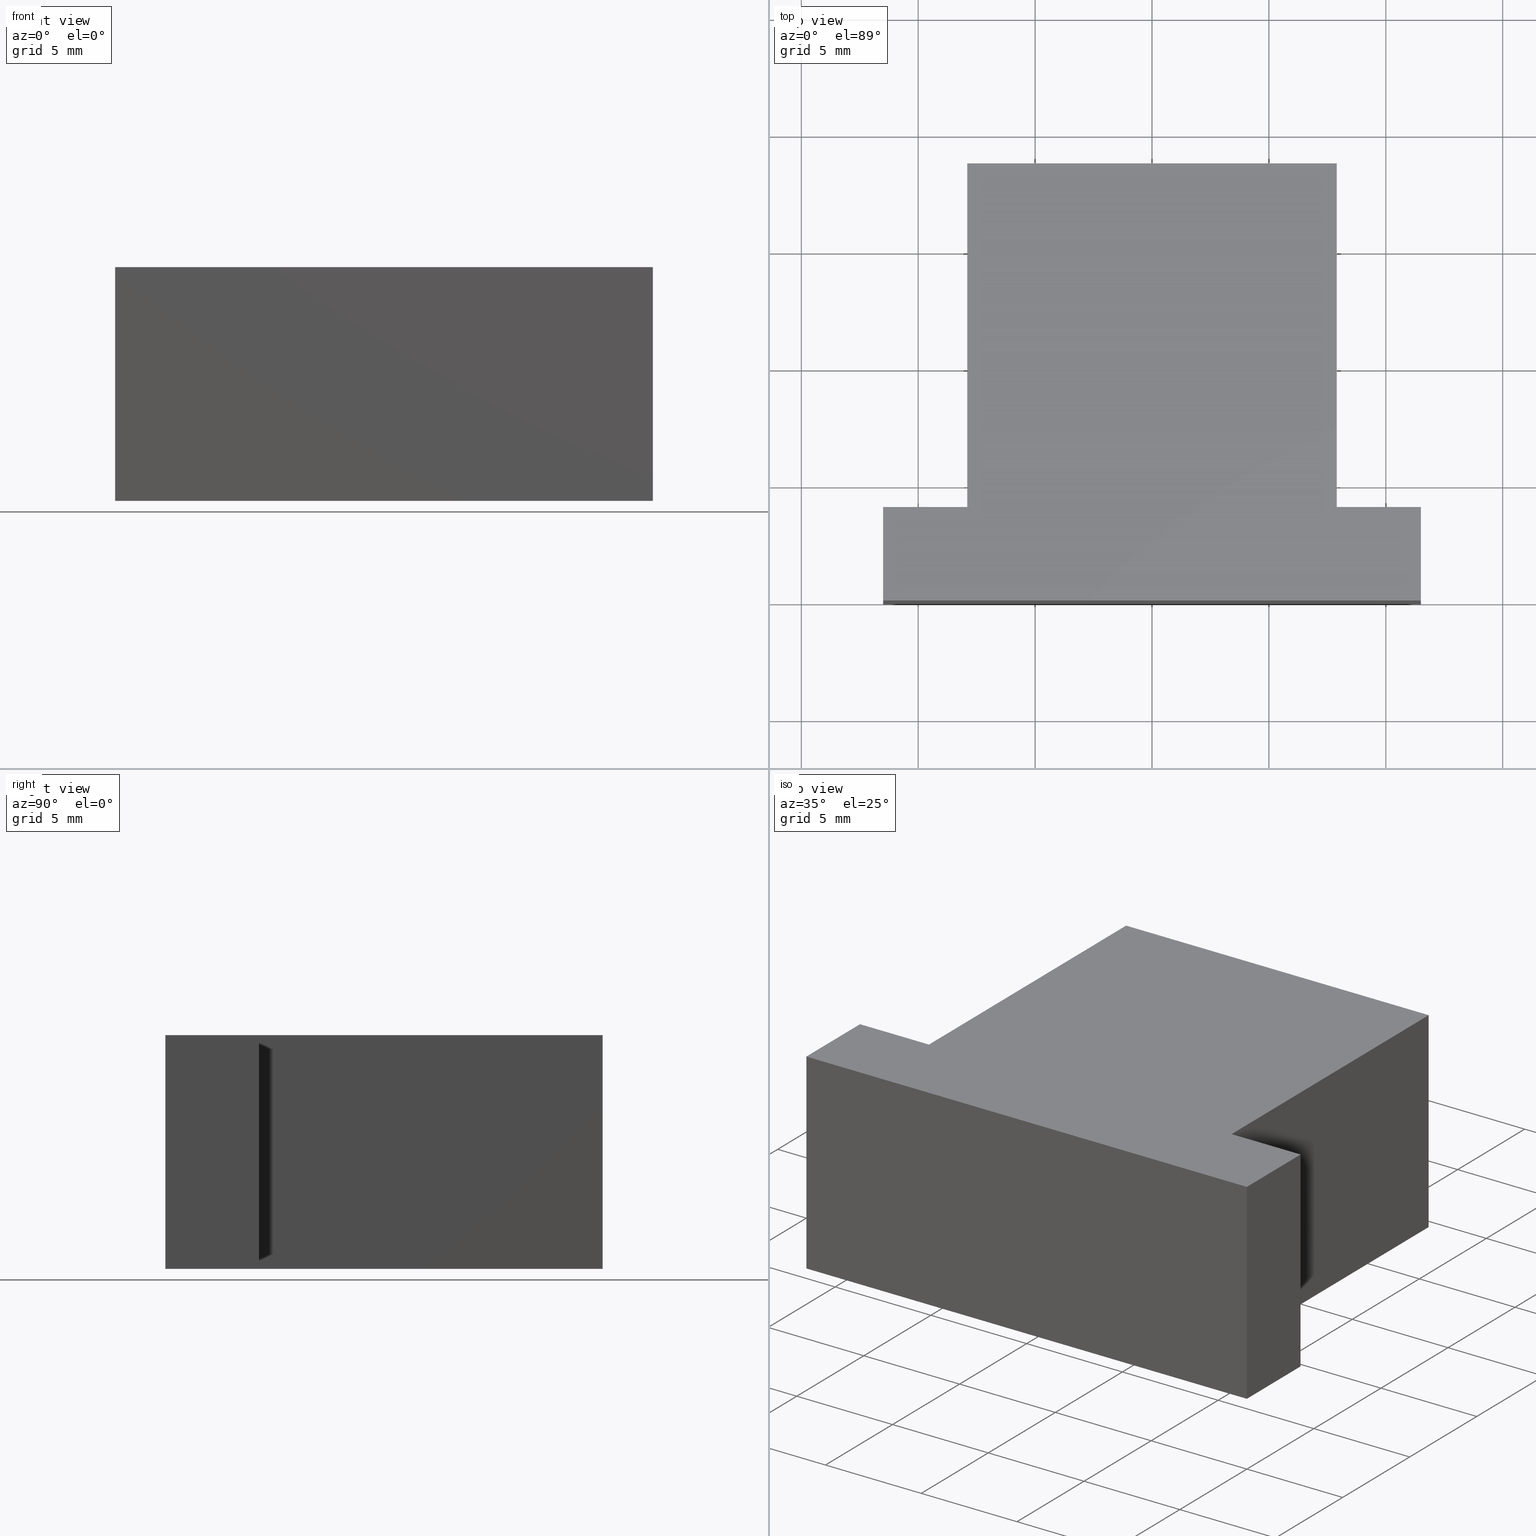
[diagram: canonical four-view strip — front | top / right | iso, engineering-drawing reading convention]
A machine part, canonical four-view strip (front | top / right | iso — engineering-drawing reading convention). The complete STEP part file that produces these views, byte-faithful:
ISO-10303-21;
HEADER;
/* Generated by software containing ST-Developer
 * from STEP Tools, Inc. (www.steptools.com) 
 */

FILE_DESCRIPTION(
/* description */ (''),
/* implementation_level */ '2;1');

FILE_NAME(
/* name */ 'E_3_01_04_15_00_WKZ-0129.stp',
/* time_stamp */ '2025-11-24T11:48:16+01:00',
/* author */ ('d.fischer'),
/* organization */ (''),
/* preprocessor_version */ 'ST-DEVELOPER v20',
/* originating_system */ 'Autodesk Inventor 2025',
/* authorisation */ '');

FILE_SCHEMA (('AUTOMOTIVE_DESIGN { 1 0 10303 214 3 1 1 }'));
ENDSEC;

DATA;
#10=MECHANICAL_DESIGN_GEOMETRIC_PRESENTATION_REPRESENTATION('',(#13),#324);
#11=SHAPE_REPRESENTATION_RELATIONSHIP('SRR','None',#331,#12);
#12=ADVANCED_BREP_SHAPE_REPRESENTATION('',(#14),#323);
#13=STYLED_ITEM('',(#340),#14);
#14=MANIFOLD_SOLID_BREP('Volumenk\X\F6rper1',#191);
#15=FACE_OUTER_BOUND('',#25,.T.);
#16=FACE_OUTER_BOUND('',#26,.T.);
#17=FACE_OUTER_BOUND('',#27,.T.);
#18=FACE_OUTER_BOUND('',#28,.T.);
#19=FACE_OUTER_BOUND('',#29,.T.);
#20=FACE_OUTER_BOUND('',#30,.T.);
#21=FACE_OUTER_BOUND('',#31,.T.);
#22=FACE_OUTER_BOUND('',#32,.T.);
#23=FACE_OUTER_BOUND('',#33,.T.);
#24=FACE_OUTER_BOUND('',#34,.T.);
#25=EDGE_LOOP('',(#123,#124,#125,#126,#127,#128,#129,#130));
#26=EDGE_LOOP('',(#131,#132,#133,#134));
#27=EDGE_LOOP('',(#135,#136,#137,#138));
#28=EDGE_LOOP('',(#139,#140,#141,#142));
#29=EDGE_LOOP('',(#143,#144,#145,#146));
#30=EDGE_LOOP('',(#147,#148,#149,#150));
#31=EDGE_LOOP('',(#151,#152,#153,#154));
#32=EDGE_LOOP('',(#155,#156,#157,#158));
#33=EDGE_LOOP('',(#159,#160,#161,#162));
#34=EDGE_LOOP('',(#163,#164,#165,#166,#167,#168,#169,#170));
#35=LINE('',#274,#59);
#36=LINE('',#276,#60);
#37=LINE('',#278,#61);
#38=LINE('',#280,#62);
#39=LINE('',#282,#63);
#40=LINE('',#284,#64);
#41=LINE('',#286,#65);
#42=LINE('',#287,#66);
#43=LINE('',#291,#67);
#44=LINE('',#292,#68);
#45=LINE('',#293,#69);
#46=LINE('',#296,#70);
#47=LINE('',#297,#71);
#48=LINE('',#300,#72);
#49=LINE('',#301,#73);
#50=LINE('',#304,#74);
#51=LINE('',#305,#75);
#52=LINE('',#308,#76);
#53=LINE('',#309,#77);
#54=LINE('',#312,#78);
#55=LINE('',#313,#79);
#56=LINE('',#316,#80);
#57=LINE('',#317,#81);
#58=LINE('',#319,#82);
#59=VECTOR('',#228,10.);
#60=VECTOR('',#229,10.);
#61=VECTOR('',#230,10.);
#62=VECTOR('',#231,10.);
#63=VECTOR('',#232,10.);
#64=VECTOR('',#233,10.);
#65=VECTOR('',#234,10.);
#66=VECTOR('',#235,10.);
#67=VECTOR('',#238,10.);
#68=VECTOR('',#239,10.);
#69=VECTOR('',#240,10.);
#70=VECTOR('',#243,10.);
#71=VECTOR('',#244,10.);
#72=VECTOR('',#247,10.);
#73=VECTOR('',#248,10.);
#74=VECTOR('',#251,10.);
#75=VECTOR('',#252,10.);
#76=VECTOR('',#255,10.);
#77=VECTOR('',#256,10.);
#78=VECTOR('',#259,10.);
#79=VECTOR('',#260,10.);
#80=VECTOR('',#263,10.);
#81=VECTOR('',#264,10.);
#82=VECTOR('',#267,10.);
#83=VERTEX_POINT('',#272);
#84=VERTEX_POINT('',#273);
#85=VERTEX_POINT('',#275);
#86=VERTEX_POINT('',#277);
#87=VERTEX_POINT('',#279);
#88=VERTEX_POINT('',#281);
#89=VERTEX_POINT('',#283);
#90=VERTEX_POINT('',#285);
#91=VERTEX_POINT('',#289);
#92=VERTEX_POINT('',#290);
#93=VERTEX_POINT('',#295);
#94=VERTEX_POINT('',#299);
#95=VERTEX_POINT('',#303);
#96=VERTEX_POINT('',#307);
#97=VERTEX_POINT('',#311);
#98=VERTEX_POINT('',#315);
#99=EDGE_CURVE('',#83,#84,#35,.T.);
#100=EDGE_CURVE('',#85,#83,#36,.T.);
#101=EDGE_CURVE('',#86,#85,#37,.T.);
#102=EDGE_CURVE('',#87,#86,#38,.T.);
#103=EDGE_CURVE('',#88,#87,#39,.T.);
#104=EDGE_CURVE('',#89,#88,#40,.T.);
#105=EDGE_CURVE('',#90,#89,#41,.T.);
#106=EDGE_CURVE('',#84,#90,#42,.T.);
#107=EDGE_CURVE('',#91,#92,#43,.T.);
#108=EDGE_CURVE('',#92,#86,#44,.T.);
#109=EDGE_CURVE('',#91,#85,#45,.T.);
#110=EDGE_CURVE('',#92,#93,#46,.T.);
#111=EDGE_CURVE('',#93,#87,#47,.T.);
#112=EDGE_CURVE('',#93,#94,#48,.T.);
#113=EDGE_CURVE('',#94,#88,#49,.T.);
#114=EDGE_CURVE('',#94,#95,#50,.T.);
#115=EDGE_CURVE('',#95,#89,#51,.T.);
#116=EDGE_CURVE('',#95,#96,#52,.T.);
#117=EDGE_CURVE('',#96,#90,#53,.T.);
#118=EDGE_CURVE('',#96,#97,#54,.T.);
#119=EDGE_CURVE('',#97,#84,#55,.T.);
#120=EDGE_CURVE('',#97,#98,#56,.T.);
#121=EDGE_CURVE('',#83,#98,#57,.T.);
#122=EDGE_CURVE('',#98,#91,#58,.T.);
#123=ORIENTED_EDGE('',*,*,#99,.F.);
#124=ORIENTED_EDGE('',*,*,#100,.F.);
#125=ORIENTED_EDGE('',*,*,#101,.F.);
#126=ORIENTED_EDGE('',*,*,#102,.F.);
#127=ORIENTED_EDGE('',*,*,#103,.F.);
#128=ORIENTED_EDGE('',*,*,#104,.F.);
#129=ORIENTED_EDGE('',*,*,#105,.F.);
#130=ORIENTED_EDGE('',*,*,#106,.F.);
#131=ORIENTED_EDGE('',*,*,#107,.T.);
#132=ORIENTED_EDGE('',*,*,#108,.T.);
#133=ORIENTED_EDGE('',*,*,#101,.T.);
#134=ORIENTED_EDGE('',*,*,#109,.F.);
#135=ORIENTED_EDGE('',*,*,#110,.T.);
#136=ORIENTED_EDGE('',*,*,#111,.T.);
#137=ORIENTED_EDGE('',*,*,#102,.T.);
#138=ORIENTED_EDGE('',*,*,#108,.F.);
#139=ORIENTED_EDGE('',*,*,#112,.T.);
#140=ORIENTED_EDGE('',*,*,#113,.T.);
#141=ORIENTED_EDGE('',*,*,#103,.T.);
#142=ORIENTED_EDGE('',*,*,#111,.F.);
#143=ORIENTED_EDGE('',*,*,#114,.T.);
#144=ORIENTED_EDGE('',*,*,#115,.T.);
#145=ORIENTED_EDGE('',*,*,#104,.T.);
#146=ORIENTED_EDGE('',*,*,#113,.F.);
#147=ORIENTED_EDGE('',*,*,#116,.T.);
#148=ORIENTED_EDGE('',*,*,#117,.T.);
#149=ORIENTED_EDGE('',*,*,#105,.T.);
#150=ORIENTED_EDGE('',*,*,#115,.F.);
#151=ORIENTED_EDGE('',*,*,#118,.T.);
#152=ORIENTED_EDGE('',*,*,#119,.T.);
#153=ORIENTED_EDGE('',*,*,#106,.T.);
#154=ORIENTED_EDGE('',*,*,#117,.F.);
#155=ORIENTED_EDGE('',*,*,#120,.T.);
#156=ORIENTED_EDGE('',*,*,#121,.F.);
#157=ORIENTED_EDGE('',*,*,#99,.T.);
#158=ORIENTED_EDGE('',*,*,#119,.F.);
#159=ORIENTED_EDGE('',*,*,#122,.T.);
#160=ORIENTED_EDGE('',*,*,#109,.T.);
#161=ORIENTED_EDGE('',*,*,#100,.T.);
#162=ORIENTED_EDGE('',*,*,#121,.T.);
#163=ORIENTED_EDGE('',*,*,#107,.F.);
#164=ORIENTED_EDGE('',*,*,#122,.F.);
#165=ORIENTED_EDGE('',*,*,#120,.F.);
#166=ORIENTED_EDGE('',*,*,#118,.F.);
#167=ORIENTED_EDGE('',*,*,#116,.F.);
#168=ORIENTED_EDGE('',*,*,#114,.F.);
#169=ORIENTED_EDGE('',*,*,#112,.F.);
#170=ORIENTED_EDGE('',*,*,#110,.F.);
#171=PLANE('',#214);
#172=PLANE('',#215);
#173=PLANE('',#216);
#174=PLANE('',#217);
#175=PLANE('',#218);
#176=PLANE('',#219);
#177=PLANE('',#220);
#178=PLANE('',#221);
#179=PLANE('',#222);
#180=PLANE('',#223);
#181=ADVANCED_FACE('',(#15),#171,.F.);
#182=ADVANCED_FACE('',(#16),#172,.T.);
#183=ADVANCED_FACE('',(#17),#173,.T.);
#184=ADVANCED_FACE('',(#18),#174,.T.);
#185=ADVANCED_FACE('',(#19),#175,.T.);
#186=ADVANCED_FACE('',(#20),#176,.T.);
#187=ADVANCED_FACE('',(#21),#177,.T.);
#188=ADVANCED_FACE('',(#22),#178,.T.);
#189=ADVANCED_FACE('',(#23),#179,.T.);
#190=ADVANCED_FACE('',(#24),#180,.T.);
#191=CLOSED_SHELL('',(#181,#182,#183,#184,#185,#186,#187,#188,#189,#190));
#192=DERIVED_UNIT_ELEMENT(#195,1.);
#193=DERIVED_UNIT_ELEMENT(#326,-3.);
#194=DIMENSIONAL_EXPONENTS(0.,1.,0.,0.,0.,0.,0.);
#195=(
CONVERSION_BASED_UNIT('gram',#197)
MASS_UNIT()
NAMED_UNIT(#194)
);
#196=(
MASS_UNIT()
NAMED_UNIT(*)
SI_UNIT(.KILO.,.GRAM.)
);
#197=MASS_MEASURE_WITH_UNIT(MASS_MEASURE(0.001),#196);
#198=DERIVED_UNIT((#192,#193));
#199=MEASURE_REPRESENTATION_ITEM('density measure',
POSITIVE_RATIO_MEASURE(8.03),#198);
#200=PROPERTY_DEFINITION_REPRESENTATION(#205,#202);
#201=PROPERTY_DEFINITION_REPRESENTATION(#206,#203);
#202=REPRESENTATION('material name',(#204),#323);
#203=REPRESENTATION('density',(#199),#323);
#204=DESCRIPTIVE_REPRESENTATION_ITEM('1.4301','1.4301');
#205=PROPERTY_DEFINITION('material property','material name',#333);
#206=PROPERTY_DEFINITION('material property','density of part',#333);
#207=DATE_TIME_ROLE('creation_date');
#208=APPLIED_DATE_AND_TIME_ASSIGNMENT(#209,#207,(#333));
#209=DATE_AND_TIME(#210,#211);
#210=CALENDAR_DATE(2011,18,10);
#211=LOCAL_TIME(0,0,0.,#212);
#212=COORDINATED_UNIVERSAL_TIME_OFFSET(0,0,.BEHIND.);
#213=AXIS2_PLACEMENT_3D('',#270,#224,#225);
#214=AXIS2_PLACEMENT_3D('',#271,#226,#227);
#215=AXIS2_PLACEMENT_3D('',#288,#236,#237);
#216=AXIS2_PLACEMENT_3D('',#294,#241,#242);
#217=AXIS2_PLACEMENT_3D('',#298,#245,#246);
#218=AXIS2_PLACEMENT_3D('',#302,#249,#250);
#219=AXIS2_PLACEMENT_3D('',#306,#253,#254);
#220=AXIS2_PLACEMENT_3D('',#310,#257,#258);
#221=AXIS2_PLACEMENT_3D('',#314,#261,#262);
#222=AXIS2_PLACEMENT_3D('',#318,#265,#266);
#223=AXIS2_PLACEMENT_3D('',#320,#268,#269);
#224=DIRECTION('axis',(0.,0.,1.));
#225=DIRECTION('refdir',(1.,0.,0.));
#226=DIRECTION('center_axis',(0.,0.,1.));
#227=DIRECTION('ref_axis',(1.,0.,0.));
#228=DIRECTION('',(0.,1.,0.));
#229=DIRECTION('',(1.,2.14364376418753E-32,0.));
#230=DIRECTION('',(0.,-1.,0.));
#231=DIRECTION('',(-1.,-3.08395284618099E-16,0.));
#232=DIRECTION('',(1.51050751649681E-16,-1.,0.));
#233=DIRECTION('',(-1.,0.,0.));
#234=DIRECTION('',(0.,1.,0.));
#235=DIRECTION('',(-1.,1.54197642309049E-16,0.));
#236=DIRECTION('center_axis',(-1.,0.,0.));
#237=DIRECTION('ref_axis',(0.,0.,1.));
#238=DIRECTION('',(0.,1.,0.));
#239=DIRECTION('',(0.,0.,-1.));
#240=DIRECTION('',(0.,0.,-1.));
#241=DIRECTION('center_axis',(-3.08395284618099E-16,1.,0.));
#242=DIRECTION('ref_axis',(0.,0.,1.));
#243=DIRECTION('',(1.,3.08395284618099E-16,0.));
#244=DIRECTION('',(0.,0.,-1.));
#245=DIRECTION('center_axis',(-1.,-1.51050751649681E-16,0.));
#246=DIRECTION('ref_axis',(0.,0.,1.));
#247=DIRECTION('',(-1.51050751649681E-16,1.,0.));
#248=DIRECTION('',(0.,0.,-1.));
#249=DIRECTION('center_axis',(0.,1.,0.));
#250=DIRECTION('ref_axis',(0.,0.,1.));
#251=DIRECTION('',(1.,0.,0.));
#252=DIRECTION('',(0.,0.,-1.));
#253=DIRECTION('center_axis',(1.,0.,0.));
#254=DIRECTION('ref_axis',(0.,0.,-1.));
#255=DIRECTION('',(0.,-1.,0.));
#256=DIRECTION('',(0.,0.,-1.));
#257=DIRECTION('center_axis',(1.54197642309049E-16,1.,0.));
#258=DIRECTION('ref_axis',(0.,0.,1.));
#259=DIRECTION('',(1.,-1.54197642309049E-16,0.));
#260=DIRECTION('',(0.,0.,-1.));
#261=DIRECTION('center_axis',(1.,0.,0.));
#262=DIRECTION('ref_axis',(0.,0.,-1.));
#263=DIRECTION('',(0.,-1.,0.));
#264=DIRECTION('',(0.,0.,1.));
#265=DIRECTION('center_axis',(2.14364376418753E-32,-1.,0.));
#266=DIRECTION('ref_axis',(0.,0.,-1.));
#267=DIRECTION('',(-1.,-2.14364376418753E-32,0.));
#268=DIRECTION('center_axis',(0.,0.,1.));
#269=DIRECTION('ref_axis',(1.,0.,0.));
#270=CARTESIAN_POINT('',(0.,0.,0.));
#271=CARTESIAN_POINT('Origin',(3.46944695195361E-16,8.08093525179857,-5.));
#272=CARTESIAN_POINT('',(11.5,7.52152442207793E-16,-5.));
#273=CARTESIAN_POINT('',(11.5,4.,-5.));
#274=CARTESIAN_POINT('',(11.5,4.,-5.));
#275=CARTESIAN_POINT('',(-11.5,7.52152442207793E-16,-5.));
#276=CARTESIAN_POINT('',(11.5,7.52152442207793E-16,-5.));
#277=CARTESIAN_POINT('',(-11.5,4.,-5.));
#278=CARTESIAN_POINT('',(-11.5,7.52152442207793E-16,-5.));
#279=CARTESIAN_POINT('',(-7.9,4.,-5.));
#280=CARTESIAN_POINT('',(-11.5,4.,-5.));
#281=CARTESIAN_POINT('',(-7.9,18.7,-5.));
#282=CARTESIAN_POINT('',(-7.9,4.,-5.));
#283=CARTESIAN_POINT('',(7.9,18.7,-5.));
#284=CARTESIAN_POINT('',(-7.9,18.7,-5.));
#285=CARTESIAN_POINT('',(7.9,4.,-5.));
#286=CARTESIAN_POINT('',(7.9,18.7,-5.));
#287=CARTESIAN_POINT('',(7.9,4.,-5.));
#288=CARTESIAN_POINT('Origin',(-11.5,7.52152442207793E-16,0.));
#289=CARTESIAN_POINT('',(-11.5,7.52152442207793E-16,5.));
#290=CARTESIAN_POINT('',(-11.5,4.,5.));
#291=CARTESIAN_POINT('',(-11.5,7.52152442207793E-16,5.));
#292=CARTESIAN_POINT('',(-11.5,4.,0.));
#293=CARTESIAN_POINT('',(-11.5,7.52152442207793E-16,0.));
#294=CARTESIAN_POINT('Origin',(-11.5,4.,0.));
#295=CARTESIAN_POINT('',(-7.9,4.,5.));
#296=CARTESIAN_POINT('',(-11.5,4.,5.));
#297=CARTESIAN_POINT('',(-7.9,4.,0.));
#298=CARTESIAN_POINT('Origin',(-7.9,4.,0.));
#299=CARTESIAN_POINT('',(-7.9,18.7,5.));
#300=CARTESIAN_POINT('',(-7.9,4.,5.));
#301=CARTESIAN_POINT('',(-7.9,18.7,0.));
#302=CARTESIAN_POINT('Origin',(-7.9,18.7,0.));
#303=CARTESIAN_POINT('',(7.9,18.7,5.));
#304=CARTESIAN_POINT('',(-7.9,18.7,5.));
#305=CARTESIAN_POINT('',(7.9,18.7,0.));
#306=CARTESIAN_POINT('Origin',(7.9,18.7,0.));
#307=CARTESIAN_POINT('',(7.9,4.,5.));
#308=CARTESIAN_POINT('',(7.9,18.7,5.));
#309=CARTESIAN_POINT('',(7.9,4.,0.));
#310=CARTESIAN_POINT('Origin',(7.9,4.,0.));
#311=CARTESIAN_POINT('',(11.5,4.,5.));
#312=CARTESIAN_POINT('',(7.9,4.,5.));
#313=CARTESIAN_POINT('',(11.5,4.,0.));
#314=CARTESIAN_POINT('Origin',(11.5,4.,0.));
#315=CARTESIAN_POINT('',(11.5,7.52152442207793E-16,5.));
#316=CARTESIAN_POINT('',(11.5,4.,5.));
#317=CARTESIAN_POINT('',(11.5,7.52152442207793E-16,0.));
#318=CARTESIAN_POINT('Origin',(11.5,7.52152442207793E-16,0.));
#319=CARTESIAN_POINT('',(11.5,7.52152442207793E-16,5.));
#320=CARTESIAN_POINT('Origin',(6.93889390390723E-17,8.08093525179857,5.));
#321=UNCERTAINTY_MEASURE_WITH_UNIT(LENGTH_MEASURE(0.01),#325,
'DISTANCE_ACCURACY_VALUE',
'Maximum model space distance between geometric entities at asserted c
onnectivities');
#322=UNCERTAINTY_MEASURE_WITH_UNIT(LENGTH_MEASURE(0.01),#325,
'DISTANCE_ACCURACY_VALUE',
'Maximum model space distance between geometric entities at asserted c
onnectivities');
#323=(
GEOMETRIC_REPRESENTATION_CONTEXT(3)
GLOBAL_UNCERTAINTY_ASSIGNED_CONTEXT((#321))
GLOBAL_UNIT_ASSIGNED_CONTEXT((#325,#327,#328))
REPRESENTATION_CONTEXT('','3D')
);
#324=(
GEOMETRIC_REPRESENTATION_CONTEXT(3)
GLOBAL_UNCERTAINTY_ASSIGNED_CONTEXT((#322))
GLOBAL_UNIT_ASSIGNED_CONTEXT((#325,#327,#328))
REPRESENTATION_CONTEXT('','3D')
);
#325=(
LENGTH_UNIT()
NAMED_UNIT(*)
SI_UNIT(.MILLI.,.METRE.)
);
#326=(
LENGTH_UNIT()
NAMED_UNIT(*)
SI_UNIT(.CENTI.,.METRE.)
);
#327=(
NAMED_UNIT(*)
PLANE_ANGLE_UNIT()
SI_UNIT($,.RADIAN.)
);
#328=(
NAMED_UNIT(*)
SI_UNIT($,.STERADIAN.)
SOLID_ANGLE_UNIT()
);
#329=SHAPE_DEFINITION_REPRESENTATION(#330,#331);
#330=PRODUCT_DEFINITION_SHAPE('',$,#333);
#331=SHAPE_REPRESENTATION('',(#213),#323);
#332=PRODUCT_DEFINITION_CONTEXT('part definition',#337,'design');
#333=PRODUCT_DEFINITION('WKZ-0129','E_3_01_04_15_00_WKZ-0129',#334,#332);
#334=PRODUCT_DEFINITION_FORMATION('',$,#339);
#335=PRODUCT_RELATED_PRODUCT_CATEGORY('E_3_01_04_15_00_WKZ-0129',
'E_3_01_04_15_00_WKZ-0129',(#339));
#336=APPLICATION_PROTOCOL_DEFINITION('international standard',
'automotive_design',2009,#337);
#337=APPLICATION_CONTEXT(
'Core Data for Automotive Mechanical Design Process');
#338=PRODUCT_CONTEXT('part definition',#337,'mechanical');
#339=PRODUCT('WKZ-0129','E_3_01_04_15_00_WKZ-0129',$,(#338));
#340=PRESENTATION_STYLE_ASSIGNMENT((#341));
#341=SURFACE_STYLE_USAGE(.BOTH.,#344);
#342=SURFACE_STYLE_RENDERING_WITH_PROPERTIES($,#348,(#343));
#343=SURFACE_STYLE_TRANSPARENT(0.);
#344=SURFACE_SIDE_STYLE('',(#345,#342));
#345=SURFACE_STYLE_FILL_AREA(#346);
#346=FILL_AREA_STYLE('',(#347));
#347=FILL_AREA_STYLE_COLOUR('',#348);
#348=COLOUR_RGB('',0.92156862745098,0.92156862745098,0.92156862745098);
ENDSEC;
END-ISO-10303-21;
